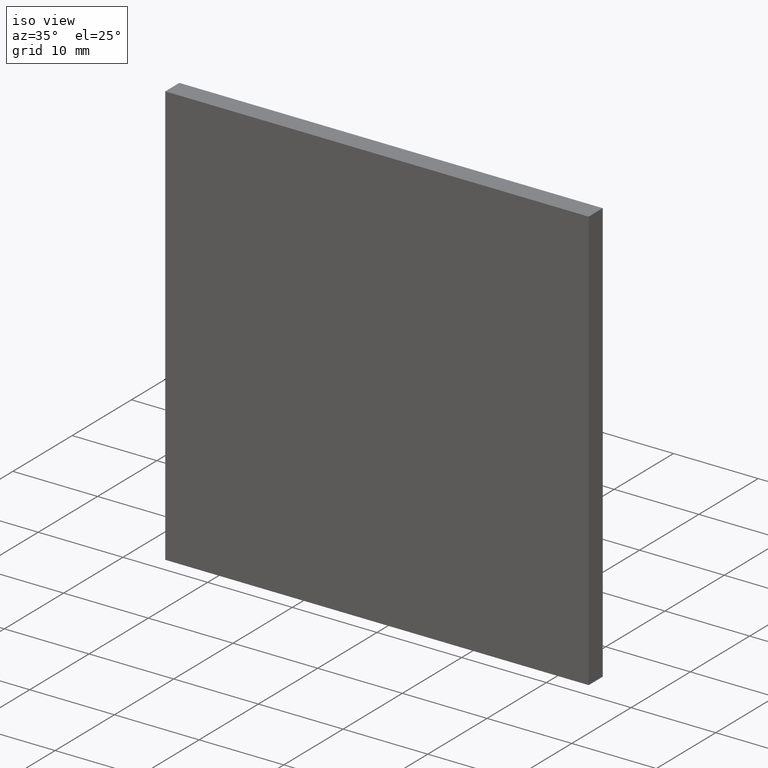
[diagram: clean part render]
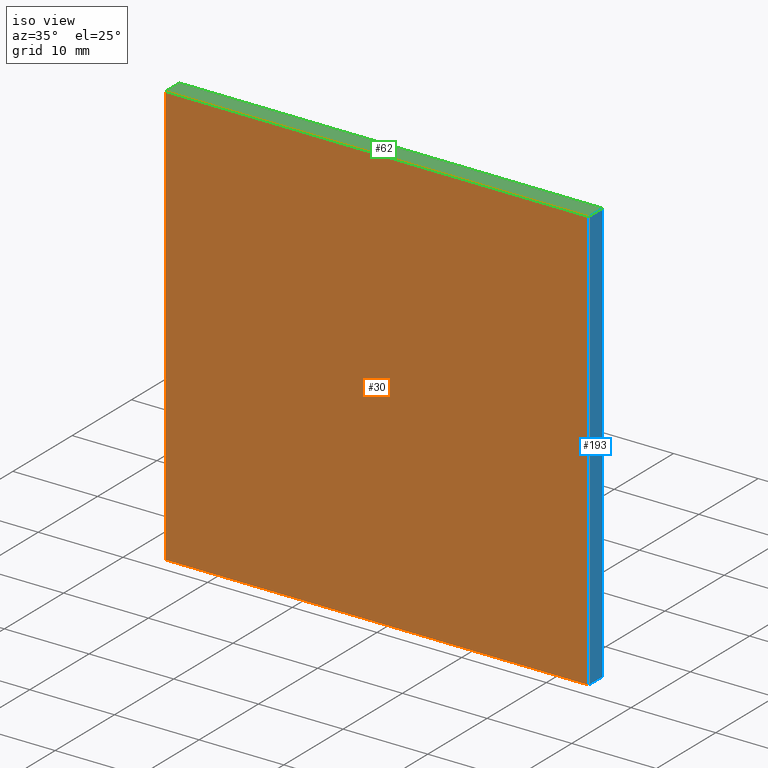
[diagram: same view with three faces highlighted in distinct colors, each labeled with its STEP entity id]
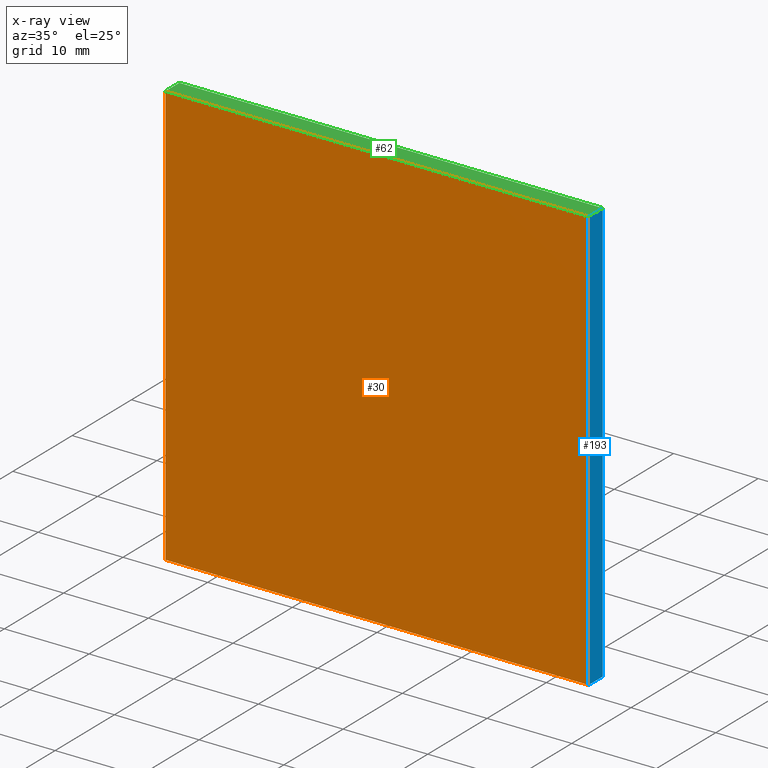
[diagram: x-ray of the same camera — body ghosted, the three highlighted faces saturated]
A machine part, iso view with three faces highlighted in distinct colors.
The next image is the same camera in x-ray (body ghosted, the three faces saturated) — at least one of them is partly hidden behind the body in this view.
Their STEP definitions:

[orange] entity #30 — the highlighted planar face has unit normal (0, -1, 0).
#1 = LINE ( 'NONE', #95, #177 ) ;
#10 = EDGE_LOOP ( 'NONE', ( #71, #29, #23, #14 ) ) ;
#13 = EDGE_CURVE ( 'NONE', #107, #34, #26, .T. ) ;
#14 = ORIENTED_EDGE ( 'NONE', *, *, #16, .F. ) ;
#16 = EDGE_CURVE ( 'NONE', #195, #107, #1, .T. ) ;
#23 = ORIENTED_EDGE ( 'NONE', *, *, #13, .F. ) ;
#26 = LINE ( 'NONE', #85, #48 ) ;
#27 = DIRECTION ( 'NONE',  ( -0.0000000000000000000, -0.0000000000000000000, 1.000000000000000000 ) ) ;
#29 = ORIENTED_EDGE ( 'NONE', *, *, #102, .F. ) ;
#30 = ADVANCED_FACE ( 'NONE', ( #158 ), #73, .T. ) ;
#34 = VERTEX_POINT ( 'NONE', #51 ) ;
#48 = VECTOR ( 'NONE', #27, 1000.000000000000000 ) ;
#51 = CARTESIAN_POINT ( 'NONE',  ( -25.00000000000000000, 0.0000000000000000000, 24.99999999999999600 ) ) ;
#58 = VECTOR ( 'NONE', #137, 1000.000000000000000 ) ;
#61 = CARTESIAN_POINT ( 'NONE',  ( -25.00000000000000000, 0.0000000000000000000, -25.00000000000000400 ) ) ;
#70 = DIRECTION ( 'NONE',  ( -1.000000000000000000, -0.0000000000000000000, -0.0000000000000000000 ) ) ;
#71 = ORIENTED_EDGE ( 'NONE', *, *, #180, .F. ) ;
#73 = PLANE ( 'NONE',  #130 ) ;
#85 = CARTESIAN_POINT ( 'NONE',  ( -25.00000000000000000, 0.0000000000000000000, 24.99999999999999600 ) ) ;
#88 = DIRECTION ( 'NONE',  ( 0.0000000000000000000, -0.0000000000000000000, -1.000000000000000000 ) ) ;
#93 = LINE ( 'NONE', #126, #58 ) ;
#95 = CARTESIAN_POINT ( 'NONE',  ( -25.00000000000000000, 0.0000000000000000000, -25.00000000000000400 ) ) ;
#102 = EDGE_CURVE ( 'NONE', #34, #196, #93, .T. ) ;
#107 = VERTEX_POINT ( 'NONE', #61 ) ;
#126 = CARTESIAN_POINT ( 'NONE',  ( -25.00000000000000000, 0.0000000000000000000, 24.99999999999999600 ) ) ;
#128 = DIRECTION ( 'NONE',  ( 0.0000000000000000000, -1.000000000000000000, 0.0000000000000000000 ) ) ;
#130 = AXIS2_PLACEMENT_3D ( 'NONE', #187, #128, #88 ) ;
#137 = DIRECTION ( 'NONE',  ( 1.000000000000000000, 0.0000000000000000000, 0.0000000000000000000 ) ) ;
#153 = VECTOR ( 'NONE', #160, 1000.000000000000000 ) ;
#158 = FACE_OUTER_BOUND ( 'NONE', #10, .T. ) ;
#160 = DIRECTION ( 'NONE',  ( 0.0000000000000000000, 0.0000000000000000000, -1.000000000000000000 ) ) ;
#162 = CARTESIAN_POINT ( 'NONE',  ( 25.00000000000000000, 0.0000000000000000000, -25.00000000000000400 ) ) ;
#165 = CARTESIAN_POINT ( 'NONE',  ( 25.00000000000000000, 0.0000000000000000000, 24.99999999999999600 ) ) ;
#177 = VECTOR ( 'NONE', #70, 1000.000000000000000 ) ;
#180 = EDGE_CURVE ( 'NONE', #196, #195, #184, .T. ) ;
#182 = CARTESIAN_POINT ( 'NONE',  ( 25.00000000000000000, 0.0000000000000000000, 24.99999999999999600 ) ) ;
#184 = LINE ( 'NONE', #165, #153 ) ;
#187 = CARTESIAN_POINT ( 'NONE',  ( 0.0000000000000000000, 0.0000000000000000000, 0.0000000000000000000 ) ) ;
#195 = VERTEX_POINT ( 'NONE', #162 ) ;
#196 = VERTEX_POINT ( 'NONE', #182 ) ;

[blue] entity #193 — the highlighted planar face has unit normal (-1, 0, 0).
#3 = VECTOR ( 'NONE', #188, 1000.000000000000000 ) ;
#4 = CARTESIAN_POINT ( 'NONE',  ( 25.00000000000000000, 2.370000000000000100, -25.00000000000000400 ) ) ;
#9 = ORIENTED_EDGE ( 'NONE', *, *, #180, .T. ) ;
#25 = CARTESIAN_POINT ( 'NONE',  ( 25.00000000000000000, 2.370000000000000100, 24.99999999999999600 ) ) ;
#41 = DIRECTION ( 'NONE',  ( -0.0000000000000000000, -1.000000000000000000, -0.0000000000000000000 ) ) ;
#45 = AXIS2_PLACEMENT_3D ( 'NONE', #66, #113, #115 ) ;
#47 = ORIENTED_EDGE ( 'NONE', *, *, #200, .F. ) ;
#52 = EDGE_LOOP ( 'NONE', ( #9, #47, #116, #139 ) ) ;
#55 = VECTOR ( 'NONE', #192, 1000.000000000000000 ) ;
#60 = VECTOR ( 'NONE', #41, 1000.000000000000000 ) ;
#64 = VERTEX_POINT ( 'NONE', #25 ) ;
#65 = CARTESIAN_POINT ( 'NONE',  ( 25.00000000000000000, 2.370000000000000100, 24.99999999999999600 ) ) ;
#66 = CARTESIAN_POINT ( 'NONE',  ( 25.00000000000000000, 2.370000000000000100, 24.99999999999999600 ) ) ;
#80 = LINE ( 'NONE', #65, #60 ) ;
#100 = CARTESIAN_POINT ( 'NONE',  ( 25.00000000000000000, 2.370000000000000100, 24.99999999999999600 ) ) ;
#113 = DIRECTION ( 'NONE',  ( -1.000000000000000000, 0.0000000000000000000, 0.0000000000000000000 ) ) ;
#115 = DIRECTION ( 'NONE',  ( 0.0000000000000000000, 0.0000000000000000000, 1.000000000000000000 ) ) ;
#116 = ORIENTED_EDGE ( 'NONE', *, *, #181, .F. ) ;
#124 = FACE_OUTER_BOUND ( 'NONE', #52, .T. ) ;
#138 = LINE ( 'NONE', #4, #55 ) ;
#139 = ORIENTED_EDGE ( 'NONE', *, *, #163, .T. ) ;
#146 = CARTESIAN_POINT ( 'NONE',  ( 25.00000000000000000, 2.370000000000000100, -25.00000000000000400 ) ) ;
#153 = VECTOR ( 'NONE', #160, 1000.000000000000000 ) ;
#160 = DIRECTION ( 'NONE',  ( 0.0000000000000000000, 0.0000000000000000000, -1.000000000000000000 ) ) ;
#162 = CARTESIAN_POINT ( 'NONE',  ( 25.00000000000000000, 0.0000000000000000000, -25.00000000000000400 ) ) ;
#163 = EDGE_CURVE ( 'NONE', #64, #196, #80, .T. ) ;
#165 = CARTESIAN_POINT ( 'NONE',  ( 25.00000000000000000, 0.0000000000000000000, 24.99999999999999600 ) ) ;
#173 = LINE ( 'NONE', #100, #3 ) ;
#175 = VERTEX_POINT ( 'NONE', #146 ) ;
#180 = EDGE_CURVE ( 'NONE', #196, #195, #184, .T. ) ;
#181 = EDGE_CURVE ( 'NONE', #64, #175, #173, .T. ) ;
#182 = CARTESIAN_POINT ( 'NONE',  ( 25.00000000000000000, 0.0000000000000000000, 24.99999999999999600 ) ) ;
#184 = LINE ( 'NONE', #165, #153 ) ;
#185 = PLANE ( 'NONE',  #45 ) ;
#188 = DIRECTION ( 'NONE',  ( 0.0000000000000000000, 0.0000000000000000000, -1.000000000000000000 ) ) ;
#192 = DIRECTION ( 'NONE',  ( -0.0000000000000000000, -1.000000000000000000, -0.0000000000000000000 ) ) ;
#193 = ADVANCED_FACE ( 'NONE', ( #124 ), #185, .F. ) ;
#195 = VERTEX_POINT ( 'NONE', #162 ) ;
#196 = VERTEX_POINT ( 'NONE', #182 ) ;
#200 = EDGE_CURVE ( 'NONE', #175, #195, #138, .T. ) ;

[green] entity #62 — the highlighted planar face has unit normal (0, 0, -1).
#5 = CARTESIAN_POINT ( 'NONE',  ( -25.00000000000000000, 2.370000000000000100, 24.99999999999999600 ) ) ;
#8 = EDGE_LOOP ( 'NONE', ( #94, #98, #54, #201 ) ) ;
#11 = VERTEX_POINT ( 'NONE', #141 ) ;
#25 = CARTESIAN_POINT ( 'NONE',  ( 25.00000000000000000, 2.370000000000000100, 24.99999999999999600 ) ) ;
#32 = DIRECTION ( 'NONE',  ( 1.000000000000000000, 0.0000000000000000000, 0.0000000000000000000 ) ) ;
#34 = VERTEX_POINT ( 'NONE', #51 ) ;
#36 = EDGE_CURVE ( 'NONE', #11, #64, #197, .T. ) ;
#38 = DIRECTION ( 'NONE',  ( -1.000000000000000000, 0.0000000000000000000, -0.0000000000000000000 ) ) ;
#41 = DIRECTION ( 'NONE',  ( -0.0000000000000000000, -1.000000000000000000, -0.0000000000000000000 ) ) ;
#51 = CARTESIAN_POINT ( 'NONE',  ( -25.00000000000000000, 0.0000000000000000000, 24.99999999999999600 ) ) ;
#54 = ORIENTED_EDGE ( 'NONE', *, *, #36, .F. ) ;
#58 = VECTOR ( 'NONE', #137, 1000.000000000000000 ) ;
#60 = VECTOR ( 'NONE', #41, 1000.000000000000000 ) ;
#62 = ADVANCED_FACE ( 'NONE', ( #189 ), #198, .F. ) ;
#64 = VERTEX_POINT ( 'NONE', #25 ) ;
#65 = CARTESIAN_POINT ( 'NONE',  ( 25.00000000000000000, 2.370000000000000100, 24.99999999999999600 ) ) ;
#72 = VECTOR ( 'NONE', #32, 1000.000000000000000 ) ;
#80 = LINE ( 'NONE', #65, #60 ) ;
#90 = CARTESIAN_POINT ( 'NONE',  ( -25.00000000000000000, 2.370000000000000100, 24.99999999999999600 ) ) ;
#93 = LINE ( 'NONE', #126, #58 ) ;
#94 = ORIENTED_EDGE ( 'NONE', *, *, #102, .T. ) ;
#97 = AXIS2_PLACEMENT_3D ( 'NONE', #5, #183, #38 ) ;
#98 = ORIENTED_EDGE ( 'NONE', *, *, #163, .F. ) ;
#101 = DIRECTION ( 'NONE',  ( -0.0000000000000000000, -1.000000000000000000, -0.0000000000000000000 ) ) ;
#102 = EDGE_CURVE ( 'NONE', #34, #196, #93, .T. ) ;
#126 = CARTESIAN_POINT ( 'NONE',  ( -25.00000000000000000, 0.0000000000000000000, 24.99999999999999600 ) ) ;
#127 = EDGE_CURVE ( 'NONE', #11, #34, #168, .T. ) ;
#137 = DIRECTION ( 'NONE',  ( 1.000000000000000000, 0.0000000000000000000, 0.0000000000000000000 ) ) ;
#141 = CARTESIAN_POINT ( 'NONE',  ( -25.00000000000000000, 2.370000000000000100, 24.99999999999999600 ) ) ;
#163 = EDGE_CURVE ( 'NONE', #64, #196, #80, .T. ) ;
#168 = LINE ( 'NONE', #169, #172 ) ;
#169 = CARTESIAN_POINT ( 'NONE',  ( -25.00000000000000000, 2.370000000000000100, 24.99999999999999600 ) ) ;
#172 = VECTOR ( 'NONE', #101, 1000.000000000000000 ) ;
#182 = CARTESIAN_POINT ( 'NONE',  ( 25.00000000000000000, 0.0000000000000000000, 24.99999999999999600 ) ) ;
#183 = DIRECTION ( 'NONE',  ( 0.0000000000000000000, 0.0000000000000000000, -1.000000000000000000 ) ) ;
#189 = FACE_OUTER_BOUND ( 'NONE', #8, .T. ) ;
#196 = VERTEX_POINT ( 'NONE', #182 ) ;
#197 = LINE ( 'NONE', #90, #72 ) ;
#198 = PLANE ( 'NONE',  #97 ) ;
#201 = ORIENTED_EDGE ( 'NONE', *, *, #127, .T. ) ;